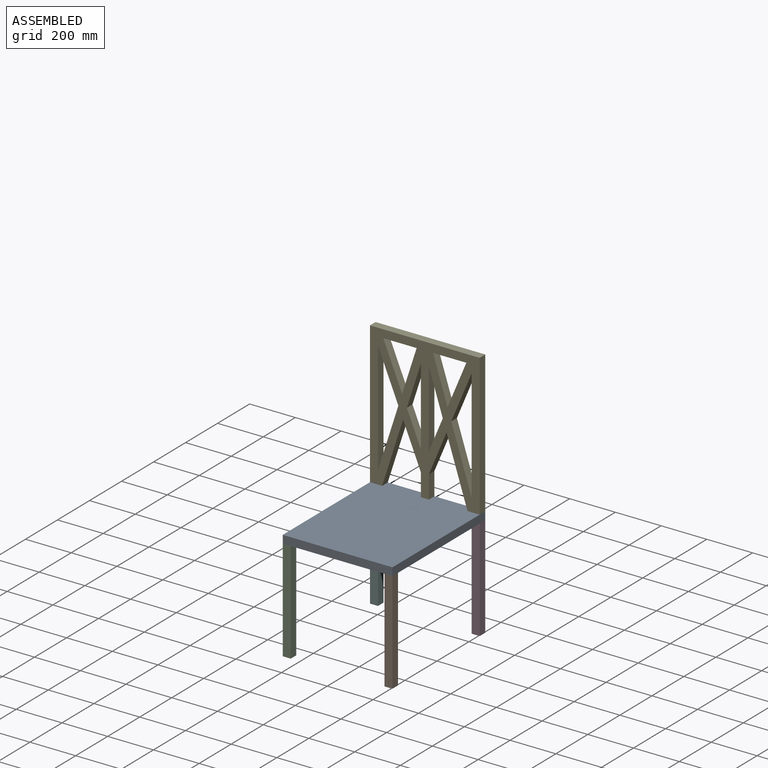
[diagram: assembled view]
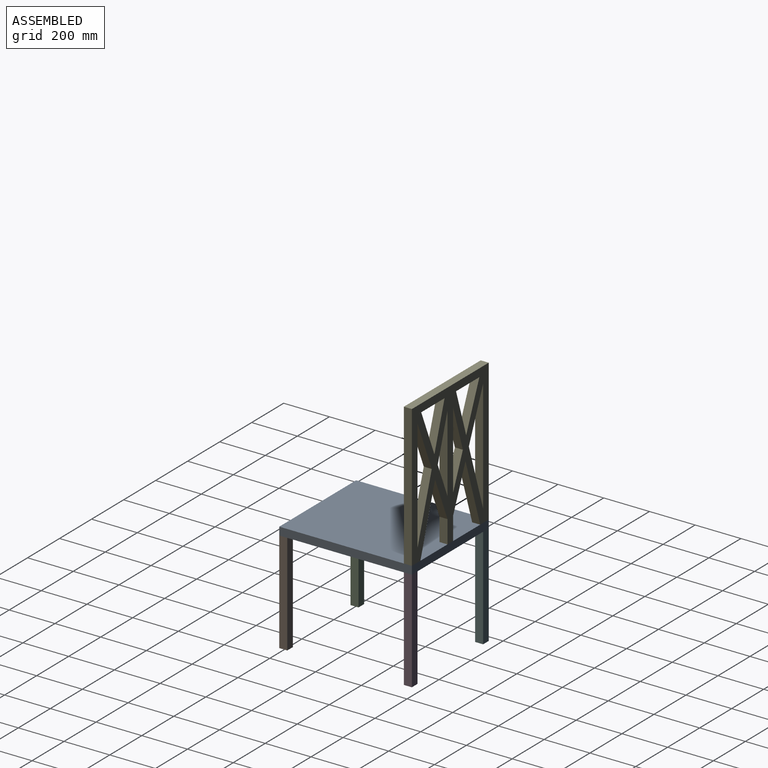
[diagram: assembled view, second angle]
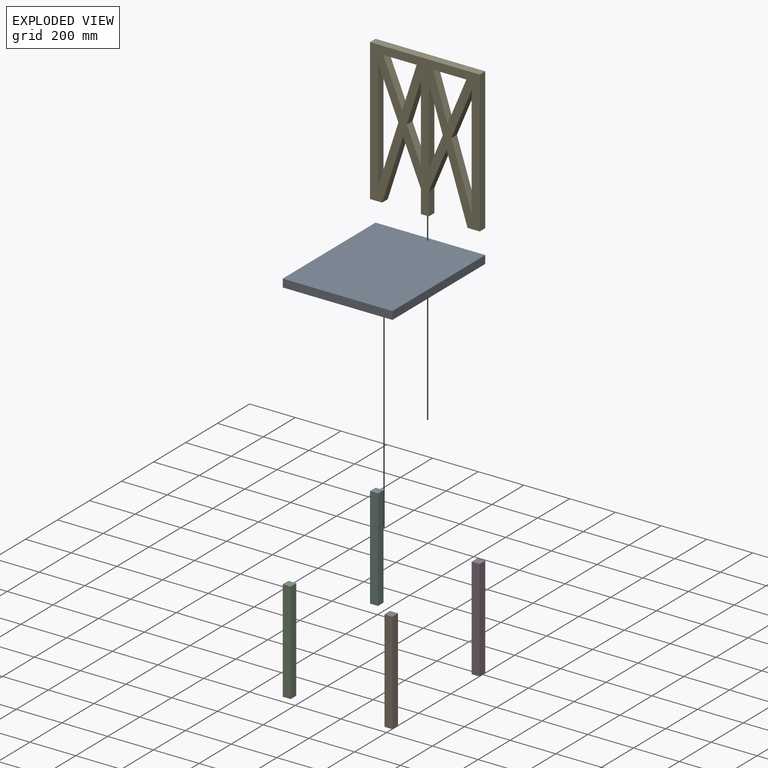
[diagram: exploded view]
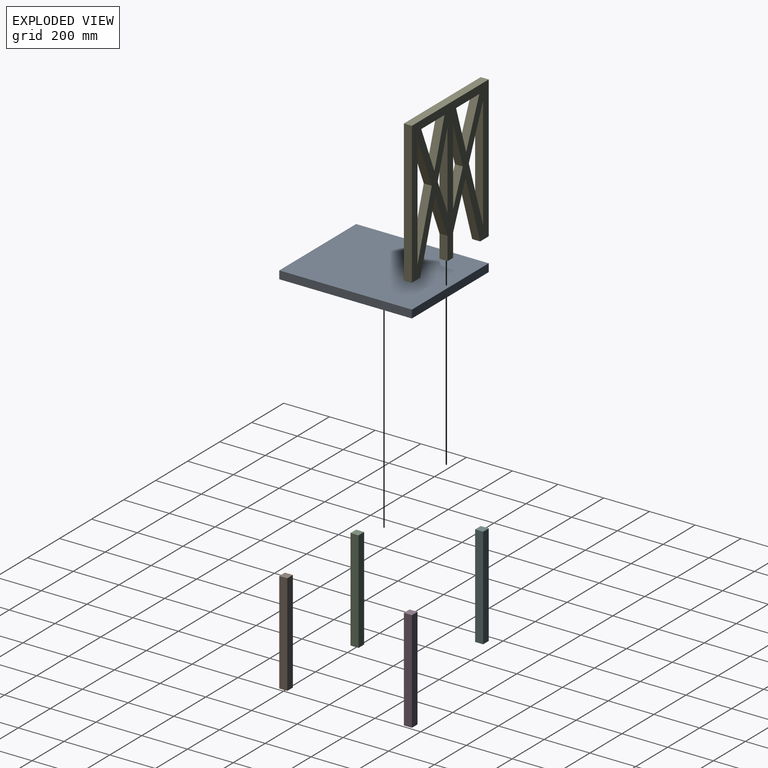
[diagram: exploded view, second angle]
ASSEMBLY  parts=6 mates=5
PART A: 6 faces, bbox 480x580x35 mm
  f0: plane 480x35mm, normal (0,-1,0), area 16800mm2, adj f1,f3,f4,f5
  f1: plane 580x35mm, normal (1,0,0), area 20300mm2, adj f0,f2,f4,f5
  f2: plane 480x35mm, normal (0,1,0), area 16800mm2, adj f1,f3,f4,f5
  f3: plane 580x35mm, normal (-1,0,0), area 20300mm2, adj f0,f2,f4,f5
  f4: plane 580x480mm, normal (0,0,1), area 278400mm2, adj f0,f1,f2,f3
  f5: plane 580x480mm, normal (0,0,-1), area 278400mm2, adj f0,f1,f2,f3
PART B: 6 faces, bbox 35x35x445 mm
  f0: plane 445x35mm, normal (0,-1,0), area 15575mm2, adj f1,f3,f4,f5
  f1: plane 445x35mm, normal (1,0,0), area 15575mm2, adj f0,f2,f4,f5
  f2: plane 445x35mm, normal (0,1,0), area 15575mm2, adj f1,f3,f4,f5
  f3: plane 445x35mm, normal (-1,0,0), area 15575mm2, adj f0,f2,f4,f5
  f4: plane 35x35mm, normal (0,0,1), area 1225mm2, adj f0,f1,f2,f3
  f5: plane 35x35mm, normal (0,0,-1), area 1225mm2, adj f0,f1,f2,f3
PART C: same geometry as B
PART D: same geometry as B
PART E: 32 faces, bbox 480x35x620 mm
  f0: plane 145.86x35mm, normal (0,0,-1), area 5104.9mm2, adj f6,f8,f26,f27
  f1: plane 492.87x35mm, normal (1,0,0), area 17250.4mm2, adj f6,f8,f28,f29
  f2: plane 336.87x35mm, normal (-1,0,0), area 11790.4mm2, adj f6,f8,f24,f25
  f3: plane 492.87x35mm, normal (-1,0,0), area 17250.4mm2, adj f6,f8,f19,f20
  f4: plane 145.86x35mm, normal (0,0,-1), area 5104.9mm2, adj f6,f8,f21,f22
  f5: plane 336.87x35mm, normal (1,0,0), area 11790.4mm2, adj f6,f8,f16,f23
  f6: plane 620x480mm, normal (0,1,0), area 148031.8mm2, adj f0,f1,f2,f3,f4,f5,f7,f9
  f7: plane 620x35mm, normal (-1,0,0), area 21700mm2, adj f6,f8,f9,f10
  f8: plane 620x480mm, normal (0,-1,0), area 148031.8mm2, adj f0,f1,f2,f3,f4,f5,f7,f9
  f9: plane 480x35mm, normal (0,0,1), area 16800mm2, adj f6,f7,f8,f11
  f10: plane 53.31x35mm, normal (0,0,-1), area 1865.9mm2, adj f6,f7,f8,f31
  f11: plane 620x35mm, normal (1,0,0), area 21700mm2, adj f6,f8,f9,f12
  f12: plane 53.31x35mm, normal (0,0,-1), area 1865.9mm2, adj f6,f8,f11,f18
  f13: plane 100x35mm, normal (1,0,0), area 3500mm2, adj f6,f8,f14,f17
  f14: plane 35x35mm, normal (0,0,-1), area 1225mm2, adj f6,f8,f13,f15
  f15: plane 100x35mm, normal (-1,0,0), area 3500mm2, adj f6,f8,f14,f30
  f16: plane 146.47x61.03mm, normal (-0.92,0,0.38), area 5553.5mm2, adj f5,f6,f8,f23
  f17: plane 186.03x77.51mm, normal (0.92,0,-0.38), area 7053.6mm2, adj f6,f8,f13,f18
  f18: plane 286.03x91.68mm, normal (-0.95,0,-0.31), area 10512.7mm2, adj f6,f8,f12,f17
  f19: plane 278.58x89.29mm, normal (0.95,0,0.31), area 10238.8mm2, adj f3,f6,f8,f20
  f20: plane 214.29x89.29mm, normal (0.92,0,-0.38), area 8125.2mm2, adj f3,f6,f8,f19
  f21: plane 197.86x82.44mm, normal (-0.92,0,0.38), area 7502mm2, adj f4,f6,f8,f22
  f22: plane 197.86x63.42mm, normal (0.95,0,0.31), area 7272mm2, adj f4,f6,f8,f21
  f23: plane 190.4x61.03mm, normal (-0.95,0,-0.31), area 6998.1mm2, adj f5,f6,f8,f16
  f24: plane 146.47x61.03mm, normal (0.92,0,0.38), area 5553.5mm2, adj f2,f6,f8,f25
  f25: plane 190.4x61.03mm, normal (0.95,0,-0.31), area 6998.1mm2, adj f2,f6,f8,f24
  f26: plane 197.86x63.42mm, normal (-0.95,0,0.31), area 7272mm2, adj f0,f6,f8,f27
  f27: plane 197.86x82.44mm, normal (0.92,0,0.38), area 7502mm2, adj f0,f6,f8,f26
  f28: plane 214.29x89.29mm, normal (-0.92,0,-0.38), area 8125.2mm2, adj f1,f6,f8,f29
  f29: plane 278.58x89.29mm, normal (-0.95,0,0.31), area 10238.8mm2, adj f1,f6,f8,f28
  f30: plane 186.03x77.51mm, normal (-0.92,0,-0.38), area 7053.6mm2, adj f6,f8,f15,f31
  f31: plane 286.03x91.68mm, normal (0.95,0,-0.31), area 10512.7mm2, adj f6,f8,f10,f30
PART F: same geometry as B
PLACE A t=(-414.19,-110.42,309.32)mm
PLACE B t=(-191.69,-382.92,-135.68)mm
PLACE C t=(-636.69,-382.92,-135.68)mm
PLACE D rot(axis=(0,0,1),90deg) t=(-191.69,162.08,-135.68)mm
PLACE E t=(-414.19,162.08,344.32)mm
PLACE F rot(axis=(0.71,-0.71,0),180deg) t=(-636.69,162.08,309.32)mm
MATE fastened F.f5 <-> A.f5  axis (0,0,1) through (-654.19,179.58,309.32)mm
MATE fastened A.f4 <-> E.f14  axis (0,0,1) through (-414.19,179.58,344.32)mm
MATE fastened D.f4 <-> A.f5  axis (0,0,1) through (-174.19,179.58,309.32)mm
MATE fastened B.f4 <-> A.f5  axis (0,0,1) through (-174.19,-400.42,309.32)mm
MATE fastened C.f4 <-> A.f5  axis (0,0,1) through (-654.19,-400.42,309.32)mm
